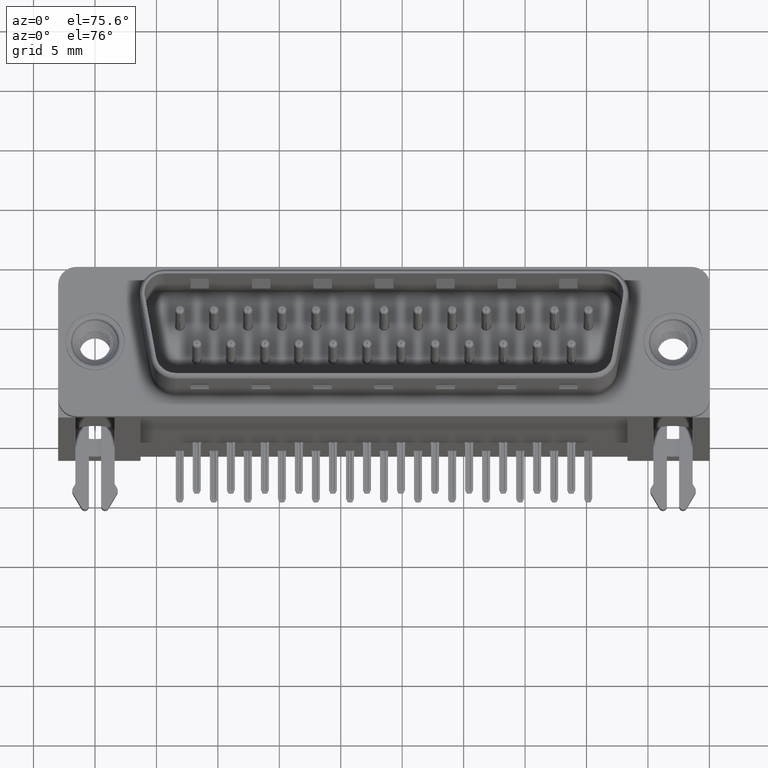
[diagram: clean part render]
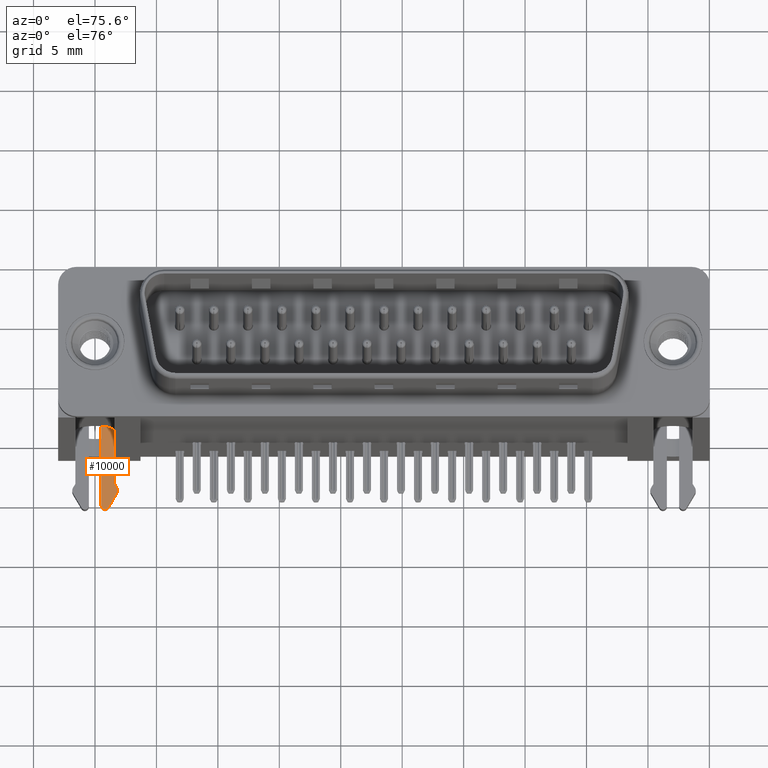
[diagram: same view with one face highlighted and labeled with its STEP entity id]
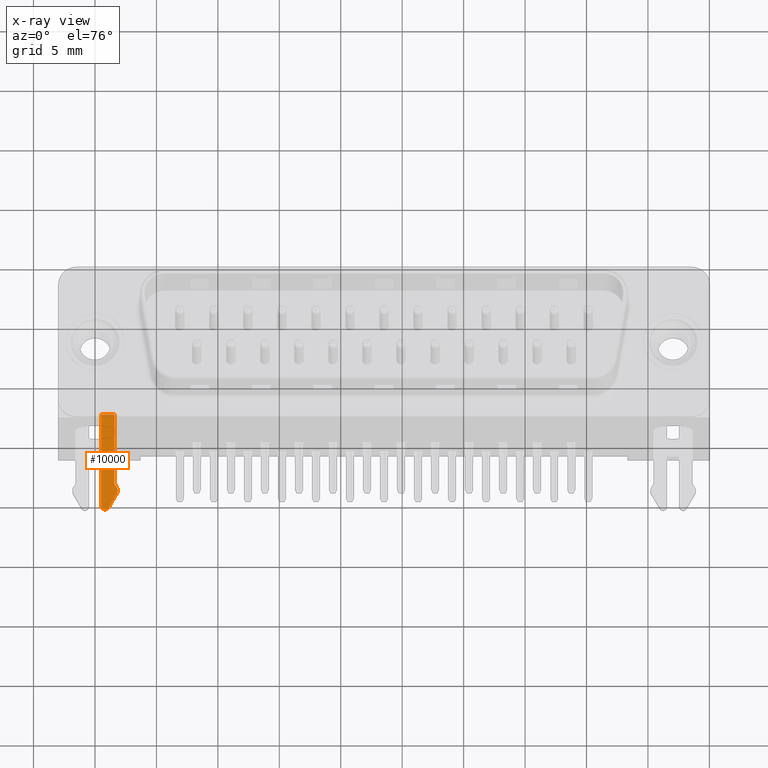
[diagram: x-ray of the same camera — body ghosted, the highlighted face saturated]
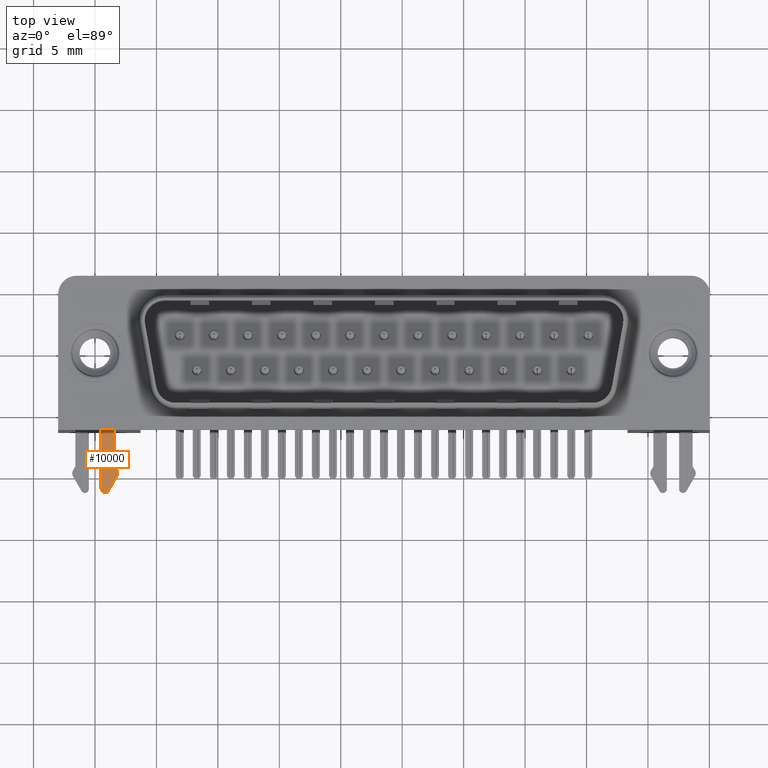
[diagram: same view with one face highlighted and labeled with its STEP entity id]
A machine part, auxiliary view. The second image highlights one B-rep face of the part: STEP entity #10000.
The next image is the same camera in x-ray: the body ghosted, the highlighted face saturated — about 4% of this face is hidden behind the body in this view.
A second angle (top view) of the same face is appended — the face is thin or edge-on in the first view.
In plain terms, the highlighted planar face has unit normal (0, 0, 1).
Its self-contained STEP definition (entity closure, byte-faithful):
#185 = CARTESIAN_POINT ( 'NONE',  ( 1.095753175472967467, -11.04036841774402689, -10.96999999999999886 ) ) ;
#488 = VERTEX_POINT ( 'NONE', #8480 ) ;
#492 = ORIENTED_EDGE ( 'NONE', *, *, #6577, .T. ) ;
#687 = LINE ( 'NONE', #11255, #2843 ) ;
#850 = CARTESIAN_POINT ( 'NONE',  ( 1.813943084081351298, -9.786431796463544330, -10.96999999999999886 ) ) ;
#1032 = CARTESIAN_POINT ( 'NONE',  ( 1.349999999999996980, -9.599999999999999645, -10.96999999999999886 ) ) ;
#1066 = EDGE_CURVE ( 'NONE', #6790, #2135, #5410, .T. ) ;
#1158 = VECTOR ( 'NONE', #19283, 1000.000000000000000 ) ;
#2135 = VERTEX_POINT ( 'NONE', #11242 ) ;
#2843 = VECTOR ( 'NONE', #7783, 1000.000000000000000 ) ;
#2876 = DIRECTION ( 'NONE',  ( -0.4999999999996720401, -0.8660254037846281117, 0.0000000000000000000 ) ) ;
#3275 = VERTEX_POINT ( 'NONE', #185 ) ;
#3932 = VECTOR ( 'NONE', #2876, 999.9999999999998863 ) ;
#4581 = EDGE_CURVE ( 'NONE', #16462, #488, #20883, .T. ) ;
#4869 = VECTOR ( 'NONE', #20015, 1000.000000000000000 ) ;
#5126 = CARTESIAN_POINT ( 'NONE',  ( 0.8192631645131329687, -10.88073683548826587, -10.96999999999999886 ) ) ;
#5410 = LINE ( 'NONE', #5644, #20237 ) ;
#5496 = EDGE_CURVE ( 'NONE', #13611, #2135, #19170, .T. ) ;
#5644 = CARTESIAN_POINT ( 'NONE',  ( 1.599999999999997202, -10.19999999999999929, -10.96999999999999886 ) ) ;
#6027 = CARTESIAN_POINT ( 'NONE',  ( 0.5000000000013951063, -10.88073683548826587, -10.96999999999999886 ) ) ;
#6042 = CARTESIAN_POINT ( 'NONE',  ( 0.9543406076999993992, -11.34953336513700073, -10.96999999999999886 ) ) ;
#6118 = VERTEX_POINT ( 'NONE', #6027 ) ;
#6223 = CARTESIAN_POINT ( 'NONE',  ( 1.599999999999997202, -9.047642353760000589, -10.96999999999999886 ) ) ;
#6502 = DIRECTION ( 'NONE',  ( 8.673617379866694732E-15, 1.000000000000000000, 0.0000000000000000000 ) ) ;
#6577 = EDGE_CURVE ( 'NONE', #488, #6790, #9371, .T. ) ;
#6790 = VERTEX_POINT ( 'NONE', #6223 ) ;
#7038 = CARTESIAN_POINT ( 'NONE',  ( 1.698190377029999754, -9.996916576276687394, -10.96999999999999886 ) ) ;
#7779 = LINE ( 'NONE', #6042, #16539 ) ;
#7783 = DIRECTION ( 'NONE',  ( 0.0000000000000000000, -1.000000000000000000, 0.0000000000000000000 ) ) ;
#8480 = CARTESIAN_POINT ( 'NONE',  ( 1.777664942790011082, -9.340958117847993236, -10.96999999999999886 ) ) ;
#8581 = AXIS2_PLACEMENT_3D ( 'NONE', #5126, #12199, #19264 ) ;
#8677 = DIRECTION ( 'NONE',  ( 0.0000000000000000000, 0.0000000000000000000, 1.000000000000000000 ) ) ;
#8904 = DIRECTION ( 'NONE',  ( 0.0000000000000000000, -1.000000000000000000, 0.0000000000000000000 ) ) ;
#9005 = CARTESIAN_POINT ( 'NONE',  ( 0.5000000000000004441, -3.200000000000000178, -10.96999999999999886 ) ) ;
#9252 = ORIENTED_EDGE ( 'NONE', *, *, #4581, .T. ) ;
#9311 = EDGE_CURVE ( 'NONE', #13611, #6118, #687, .T. ) ;
#9371 = LINE ( 'NONE', #10988, #4869 ) ;
#10000 = ADVANCED_FACE ( 'NONE', ( #19219 ), #22829, .T. ) ;
#10988 = CARTESIAN_POINT ( 'NONE',  ( 1.777664942789997093, -9.340958117848000342, -10.96999999999999886 ) ) ;
#11242 = CARTESIAN_POINT ( 'NONE',  ( 1.599999999999997202, -3.199999999999999734, -10.96999999999999886 ) ) ;
#11255 = CARTESIAN_POINT ( 'NONE',  ( 0.5000000000000004441, -10.19999999999999929, -10.96999999999999886 ) ) ;
#12199 = DIRECTION ( 'NONE',  ( -0.0000000000000000000, -0.0000000000000000000, -1.000000000000000000 ) ) ;
#12280 = CARTESIAN_POINT ( 'NONE',  ( -2.950000000000001066, -10.19999999999999929, -10.96999999999999886 ) ) ;
#12600 = DIRECTION ( 'NONE',  ( -0.0000000000000000000, 1.000000000000000000, -0.0000000000000000000 ) ) ;
#13144 = EDGE_LOOP ( 'NONE', ( #16544, #17581, #9252, #492, #16949, #22835, #15542, #20806 ) ) ;
#13611 = VERTEX_POINT ( 'NONE', #9005 ) ;
#14875 = VERTEX_POINT ( 'NONE', #7038 ) ;
#14972 = AXIS2_PLACEMENT_3D ( 'NONE', #1032, #22283, #6502 ) ;
#15415 = AXIS2_PLACEMENT_3D ( 'NONE', #12280, #8677, #8904 ) ;
#15542 = ORIENTED_EDGE ( 'NONE', *, *, #9311, .T. ) ;
#15612 = CIRCLE ( 'NONE', #8581, 0.3192631645117338657 ) ;
#15696 = CARTESIAN_POINT ( 'NONE',  ( -2.950000000000001066, -3.200000000000000178, -10.96999999999999886 ) ) ;
#16462 = VERTEX_POINT ( 'NONE', #850 ) ;
#16539 = VECTOR ( 'NONE', #22620, 1000.000000000000114 ) ;
#16544 = ORIENTED_EDGE ( 'NONE', *, *, #20655, .F. ) ;
#16949 = ORIENTED_EDGE ( 'NONE', *, *, #1066, .T. ) ;
#17137 = EDGE_CURVE ( 'NONE', #3275, #6118, #15612, .T. ) ;
#17581 = ORIENTED_EDGE ( 'NONE', *, *, #20703, .T. ) ;
#18767 = LINE ( 'NONE', #20166, #3932 ) ;
#19170 = LINE ( 'NONE', #15696, #1158 ) ;
#19219 = FACE_OUTER_BOUND ( 'NONE', #13144, .T. ) ;
#19264 = DIRECTION ( 'NONE',  ( 1.000000000000000000, 0.0000000000000000000, 0.0000000000000000000 ) ) ;
#19283 = DIRECTION ( 'NONE',  ( 1.000000000000000000, 0.0000000000000000000, 0.0000000000000000000 ) ) ;
#20015 = DIRECTION ( 'NONE',  ( -0.5180837643028933792, 0.8553298855796773736, 0.0000000000000000000 ) ) ;
#20166 = CARTESIAN_POINT ( 'NONE',  ( -0.1580127018907181990, -13.21195461813599792, -10.96999999999999886 ) ) ;
#20237 = VECTOR ( 'NONE', #12600, 1000.000000000000000 ) ;
#20655 = EDGE_CURVE ( 'NONE', #14875, #3275, #18767, .T. ) ;
#20703 = EDGE_CURVE ( 'NONE', #14875, #16462, #7779, .T. ) ;
#20806 = ORIENTED_EDGE ( 'NONE', *, *, #17137, .F. ) ;
#20883 = CIRCLE ( 'NONE', #14972, 0.5000000000009996448 ) ;
#22283 = DIRECTION ( 'NONE',  ( -0.0000000000000000000, -0.0000000000000000000, 1.000000000000000000 ) ) ;
#22620 = DIRECTION ( 'NONE',  ( 0.4818742530754802633, 0.8762403803882516939, 0.0000000000000000000 ) ) ;
#22829 = PLANE ( 'NONE',  #15415 ) ;
#22835 = ORIENTED_EDGE ( 'NONE', *, *, #5496, .F. ) ;